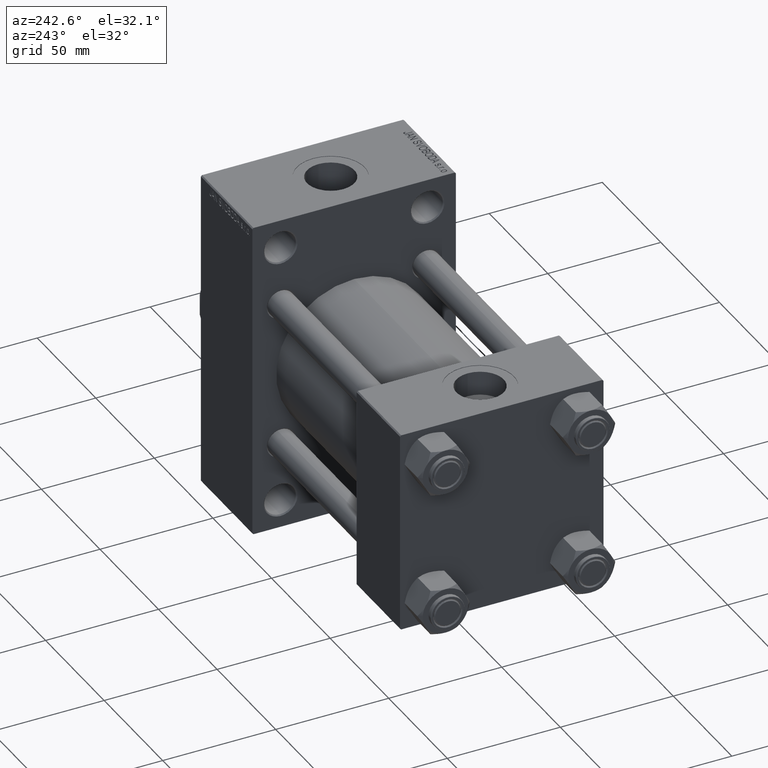
[diagram: clean part render]
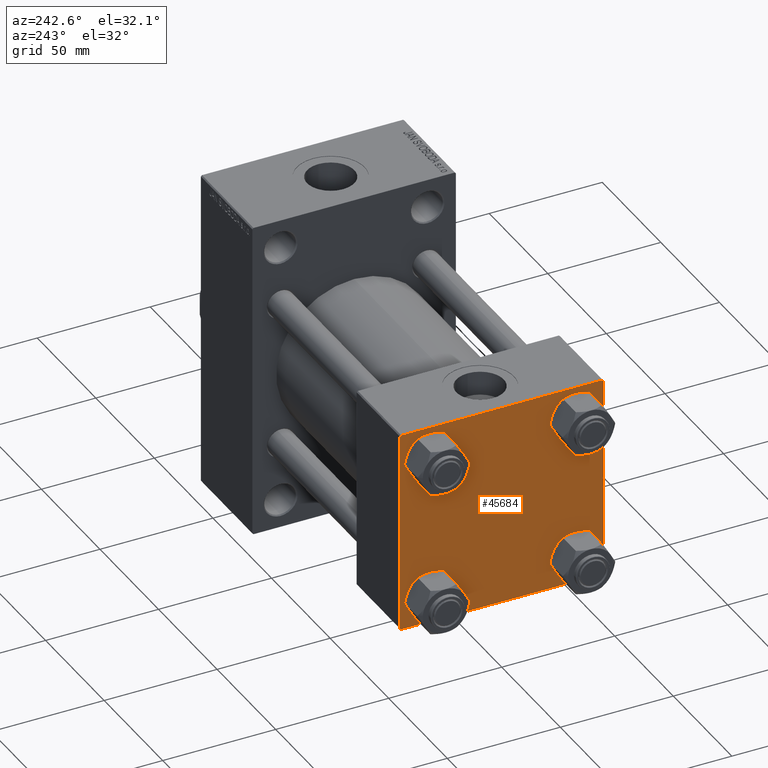
[diagram: same view with one face highlighted and labeled with its STEP entity id]
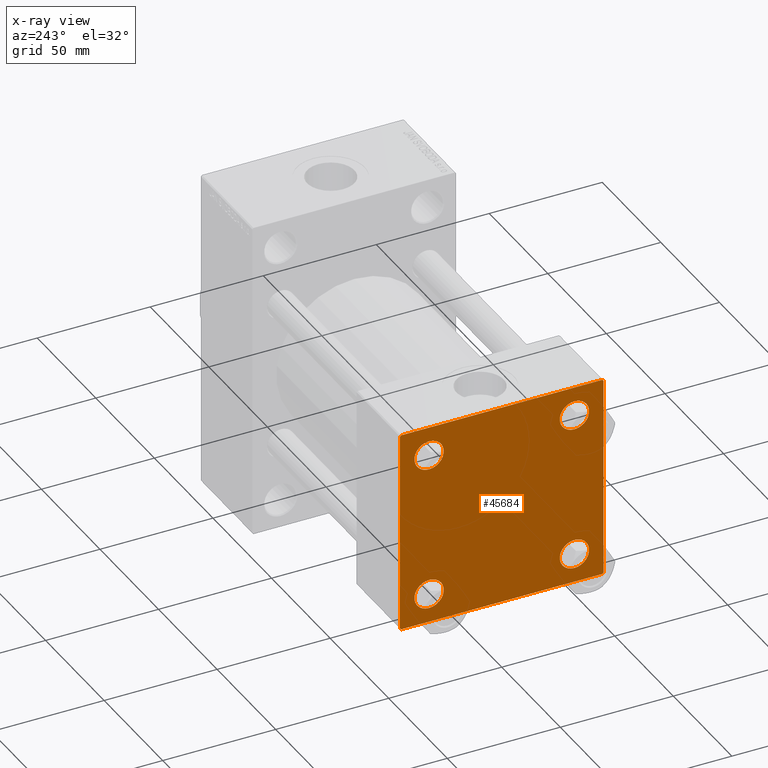
[diagram: x-ray of the same camera — body ghosted, the highlighted face saturated]
A machine part, auxiliary view. The second image highlights one B-rep face of the part: STEP entity #45684.
The next image is the same camera in x-ray: the body ghosted, the highlighted face saturated — about 0% of this face is hidden behind the body in this view.
In plain terms, the highlighted planar face has unit normal (-1, 0, 0).
Its self-contained STEP definition (entity closure, byte-faithful):
#506 = VERTEX_POINT ( 'NONE', #31009 ) ;
#1181 = FACE_BOUND ( 'NONE', #28612, .T. ) ;
#1462 = VERTEX_POINT ( 'NONE', #16847 ) ;
#1650 = FACE_BOUND ( 'NONE', #25374, .T. ) ;
#1666 = VERTEX_POINT ( 'NONE', #4062 ) ;
#1827 = EDGE_CURVE ( 'NONE', #43446, #10693, #13955, .T. ) ;
#2751 = VERTEX_POINT ( 'NONE', #35973 ) ;
#2895 = DIRECTION ( 'NONE',  ( 0.000000000000000000, -0.7071067811865474617, 0.7071067811865474617 ) ) ;
#3062 = AXIS2_PLACEMENT_3D ( 'NONE', #30664, #5489, #11727 ) ;
#3623 = CARTESIAN_POINT ( 'NONE',  ( 0.000000000000000000, 32.14999999999999147, -32.15000000000000568 ) ) ;
#3742 = CARTESIAN_POINT ( 'NONE',  ( 0.000000000000000000, -32.14999999999997726, -25.65000000000003411 ) ) ;
#4062 = CARTESIAN_POINT ( 'NONE',  ( 0.000000000000000000, 44.49999999999998579, -44.99999999999998579 ) ) ;
#4203 = DIRECTION ( 'NONE',  ( 1.000000000000000000, -0.000000000000000000, 0.000000000000000000 ) ) ;
#4767 = VERTEX_POINT ( 'NONE', #25448 ) ;
#5489 = DIRECTION ( 'NONE',  ( -1.000000000000000000, 0.000000000000000000, -0.000000000000000000 ) ) ;
#5672 = VECTOR ( 'NONE', #8697, 1000.000000000000114 ) ;
#6270 = EDGE_CURVE ( 'NONE', #506, #31781, #20991, .T. ) ;
#6406 = ORIENTED_EDGE ( 'NONE', *, *, #1827, .T. ) ;
#6409 = CARTESIAN_POINT ( 'NONE',  ( 0.000000000000000000, -32.14999999999997726, -38.64999999999999147 ) ) ;
#7197 = CARTESIAN_POINT ( 'NONE',  ( 0.000000000000000000, -44.74999999999998579, -44.74999999999998579 ) ) ;
#7246 = VECTOR ( 'NONE', #9499, 1000.000000000000114 ) ;
#7603 = ORIENTED_EDGE ( 'NONE', *, *, #23111, .F. ) ;
#7798 = DIRECTION ( 'NONE',  ( 0.000000000000000000, 0.000000000000000000, 1.000000000000000000 ) ) ;
#7823 = CARTESIAN_POINT ( 'NONE',  ( 0.000000000000000000, -32.14999999999997726, 38.65000000000003411 ) ) ;
#8084 = ORIENTED_EDGE ( 'NONE', *, *, #15948, .T. ) ;
#8697 = DIRECTION ( 'NONE',  ( -0.000000000000000000, -0.7071067811865474617, -0.7071067811865474617 ) ) ;
#8858 = DIRECTION ( 'NONE',  ( 0.000000000000000000, 0.000000000000000000, 1.000000000000000000 ) ) ;
#9090 = AXIS2_PLACEMENT_3D ( 'NONE', #14680, #29302, #30708 ) ;
#9499 = DIRECTION ( 'NONE',  ( 0.000000000000000000, 0.7071067811865474617, -0.7071067811865474617 ) ) ;
#9579 = ORIENTED_EDGE ( 'NONE', *, *, #10551, .T. ) ;
#9670 = DIRECTION ( 'NONE',  ( 0.000000000000000000, -1.000000000000000000, -1.541976423090495633E-16 ) ) ;
#10141 = LINE ( 'NONE', #42523, #15984 ) ;
#10271 = CARTESIAN_POINT ( 'NONE',  ( 0.000000000000000000, -32.14999999999997726, -32.15000000000001279 ) ) ;
#10551 = EDGE_CURVE ( 'NONE', #11972, #41438, #27915, .T. ) ;
#10693 = VERTEX_POINT ( 'NONE', #19200 ) ;
#10891 = AXIS2_PLACEMENT_3D ( 'NONE', #12948, #35252, #8858 ) ;
#11727 = DIRECTION ( 'NONE',  ( -0.000000000000000000, 0.000000000000000000, 1.000000000000000000 ) ) ;
#11972 = VERTEX_POINT ( 'NONE', #20540 ) ;
#12948 = CARTESIAN_POINT ( 'NONE',  ( 0.000000000000000000, 32.14999999999999147, 32.15000000000000568 ) ) ;
#12962 = DIRECTION ( 'NONE',  ( 1.000000000000000000, -0.000000000000000000, 0.000000000000000000 ) ) ;
#13638 = EDGE_CURVE ( 'NONE', #22898, #18156, #35689, .T. ) ;
#13683 = DIRECTION ( 'NONE',  ( 0.000000000000000000, 0.000000000000000000, -1.000000000000000000 ) ) ;
#13763 = ORIENTED_EDGE ( 'NONE', *, *, #16003, .F. ) ;
#13955 = CIRCLE ( 'NONE', #10891, 6.499999999999977796 ) ;
#14284 = VECTOR ( 'NONE', #39844, 1000.000000000000000 ) ;
#14596 = CIRCLE ( 'NONE', #46739, 6.499999999999977796 ) ;
#14680 = CARTESIAN_POINT ( 'NONE',  ( 0.000000000000000000, 32.14999999999999147, -32.15000000000000568 ) ) ;
#15948 = EDGE_CURVE ( 'NONE', #39145, #35372, #40303, .T. ) ;
#15984 = VECTOR ( 'NONE', #9670, 1000.000000000000000 ) ;
#16003 = EDGE_CURVE ( 'NONE', #506, #35372, #28339, .T. ) ;
#16059 = PLANE ( 'NONE',  #3062 ) ;
#16090 = CARTESIAN_POINT ( 'NONE',  ( 0.000000000000000000, -32.14999999999997726, -32.15000000000001279 ) ) ;
#16229 = CARTESIAN_POINT ( 'NONE',  ( 0.000000000000000000, 32.14999999999999147, 25.65000000000002700 ) ) ;
#16847 = CARTESIAN_POINT ( 'NONE',  ( 0.000000000000000000, 32.14999999999999147, -25.65000000000002700 ) ) ;
#16937 = CARTESIAN_POINT ( 'NONE',  ( 0.000000000000000000, 32.14999999999999147, 32.15000000000000568 ) ) ;
#17878 = EDGE_CURVE ( 'NONE', #18156, #22898, #40397, .T. ) ;
#18156 = VERTEX_POINT ( 'NONE', #6409 ) ;
#19200 = CARTESIAN_POINT ( 'NONE',  ( 0.000000000000000000, 32.14999999999999147, 38.64999999999999147 ) ) ;
#19442 = AXIS2_PLACEMENT_3D ( 'NONE', #44959, #4203, #7798 ) ;
#20419 = CARTESIAN_POINT ( 'NONE',  ( 0.000000000000000000, -44.49999999999995737, -45.00000000000000000 ) ) ;
#20540 = CARTESIAN_POINT ( 'NONE',  ( 0.000000000000000000, -32.14999999999997726, 25.64999999999999147 ) ) ;
#20991 = LINE ( 'NONE', #32466, #31711 ) ;
#21896 = AXIS2_PLACEMENT_3D ( 'NONE', #10271, #39549, #33021 ) ;
#22211 = ORIENTED_EDGE ( 'NONE', *, *, #38837, .T. ) ;
#22327 = CARTESIAN_POINT ( 'NONE',  ( 0.000000000000000000, -32.14999999999997726, 32.15000000000001279 ) ) ;
#22354 = EDGE_CURVE ( 'NONE', #1462, #2751, #14596, .T. ) ;
#22608 = ORIENTED_EDGE ( 'NONE', *, *, #6270, .T. ) ;
#22768 = AXIS2_PLACEMENT_3D ( 'NONE', #16090, #12962, #27589 ) ;
#22898 = VERTEX_POINT ( 'NONE', #3742 ) ;
#23111 = EDGE_CURVE ( 'NONE', #4767, #31781, #39006, .T. ) ;
#23218 = EDGE_LOOP ( 'NONE', ( #44685, #22211 ) ) ;
#24372 = DIRECTION ( 'NONE',  ( 0.000000000000000000, -1.000000000000000000, -1.541976423090495387E-16 ) ) ;
#25157 = EDGE_CURVE ( 'NONE', #4767, #46190, #27973, .T. ) ;
#25249 = DIRECTION ( 'NONE',  ( 0.000000000000000000, 0.000000000000000000, 1.000000000000000000 ) ) ;
#25358 = ORIENTED_EDGE ( 'NONE', *, *, #25157, .T. ) ;
#25374 = EDGE_LOOP ( 'NONE', ( #31072, #28910 ) ) ;
#25448 = CARTESIAN_POINT ( 'NONE',  ( 0.000000000000000000, 44.49999999999998579, 45.00000000000001421 ) ) ;
#25576 = VECTOR ( 'NONE', #24372, 1000.000000000000000 ) ;
#26772 = DIRECTION ( 'NONE',  ( 1.000000000000000000, -0.000000000000000000, 0.000000000000000000 ) ) ;
#26844 = FACE_OUTER_BOUND ( 'NONE', #28522, .T. ) ;
#26931 = CARTESIAN_POINT ( 'NONE',  ( 0.000000000000000000, 44.74999999999998579, -44.74999999999998579 ) ) ;
#27120 = EDGE_CURVE ( 'NONE', #41438, #11972, #28661, .T. ) ;
#27555 = EDGE_CURVE ( 'NONE', #46240, #1666, #44202, .T. ) ;
#27589 = DIRECTION ( 'NONE',  ( 0.000000000000000000, 0.000000000000000000, 1.000000000000000000 ) ) ;
#27915 = CIRCLE ( 'NONE', #32489, 6.500000000000019540 ) ;
#27973 = LINE ( 'NONE', #31559, #7246 ) ;
#28339 = LINE ( 'NONE', #42960, #14284 ) ;
#28522 = EDGE_LOOP ( 'NONE', ( #47193, #32246, #32374, #8084, #13763, #22608, #7603, #25358 ) ) ;
#28612 = EDGE_LOOP ( 'NONE', ( #42659, #6406 ) ) ;
#28661 = CIRCLE ( 'NONE', #19442, 6.500000000000019540 ) ;
#28910 = ORIENTED_EDGE ( 'NONE', *, *, #17878, .T. ) ;
#29055 = CARTESIAN_POINT ( 'NONE',  ( 0.000000000000000000, -45.00000000000000000, -44.49999999999995737 ) ) ;
#29302 = DIRECTION ( 'NONE',  ( 1.000000000000000000, -0.000000000000000000, 0.000000000000000000 ) ) ;
#29631 = ORIENTED_EDGE ( 'NONE', *, *, #27120, .T. ) ;
#29759 = CIRCLE ( 'NONE', #9090, 6.499999999999977796 ) ;
#29977 = DIRECTION ( 'NONE',  ( 1.000000000000000000, -0.000000000000000000, 0.000000000000000000 ) ) ;
#30664 = CARTESIAN_POINT ( 'NONE',  ( 0.000000000000000000, 0.000000000000000000, 0.000000000000000000 ) ) ;
#30708 = DIRECTION ( 'NONE',  ( 0.000000000000000000, 0.000000000000000000, 1.000000000000000000 ) ) ;
#30903 = FACE_BOUND ( 'NONE', #23218, .T. ) ;
#31009 = CARTESIAN_POINT ( 'NONE',  ( 0.000000000000000000, -45.00000000000000711, 44.49999999999997158 ) ) ;
#31072 = ORIENTED_EDGE ( 'NONE', *, *, #13638, .T. ) ;
#31559 = CARTESIAN_POINT ( 'NONE',  ( 0.000000000000000000, 44.74999999999999289, 44.74999999999999289 ) ) ;
#31711 = VECTOR ( 'NONE', #43037, 1000.000000000000114 ) ;
#31781 = VERTEX_POINT ( 'NONE', #42683 ) ;
#32246 = ORIENTED_EDGE ( 'NONE', *, *, #27555, .T. ) ;
#32374 = ORIENTED_EDGE ( 'NONE', *, *, #37607, .T. ) ;
#32466 = CARTESIAN_POINT ( 'NONE',  ( -0.000000000000000000, -44.75000000000029843, 44.74999999999967315 ) ) ;
#32489 = AXIS2_PLACEMENT_3D ( 'NONE', #22327, #29977, #34059 ) ;
#32582 = EDGE_CURVE ( 'NONE', #46190, #46240, #47213, .T. ) ;
#32652 = VECTOR ( 'NONE', #13683, 1000.000000000000000 ) ;
#32976 = CARTESIAN_POINT ( 'NONE',  ( 0.000000000000000000, 44.99999999999998579, 44.50000000000001421 ) ) ;
#33021 = DIRECTION ( 'NONE',  ( 0.000000000000000000, 0.000000000000000000, 1.000000000000000000 ) ) ;
#33425 = VECTOR ( 'NONE', #2895, 1000.000000000000114 ) ;
#34059 = DIRECTION ( 'NONE',  ( 0.000000000000000000, 0.000000000000000000, 1.000000000000000000 ) ) ;
#35162 = CARTESIAN_POINT ( 'NONE',  ( 0.000000000000000000, 44.99999999999998579, 45.00000000000001421 ) ) ;
#35252 = DIRECTION ( 'NONE',  ( 1.000000000000000000, -0.000000000000000000, 0.000000000000000000 ) ) ;
#35372 = VERTEX_POINT ( 'NONE', #29055 ) ;
#35689 = CIRCLE ( 'NONE', #21896, 6.499999999999977796 ) ;
#35973 = CARTESIAN_POINT ( 'NONE',  ( 0.000000000000000000, 32.14999999999999147, -38.64999999999998437 ) ) ;
#36588 = EDGE_LOOP ( 'NONE', ( #29631, #9579 ) ) ;
#37607 = EDGE_CURVE ( 'NONE', #1666, #39145, #10141, .T. ) ;
#38050 = DIRECTION ( 'NONE',  ( 0.000000000000000000, 0.000000000000000000, 1.000000000000000000 ) ) ;
#38837 = EDGE_CURVE ( 'NONE', #2751, #1462, #29759, .T. ) ;
#39006 = LINE ( 'NONE', #35162, #25576 ) ;
#39145 = VERTEX_POINT ( 'NONE', #20419 ) ;
#39549 = DIRECTION ( 'NONE',  ( 1.000000000000000000, -0.000000000000000000, 0.000000000000000000 ) ) ;
#39580 = CARTESIAN_POINT ( 'NONE',  ( 0.000000000000000000, 44.99999999999998579, 45.00000000000001421 ) ) ;
#39844 = DIRECTION ( 'NONE',  ( 0.000000000000000000, 7.709882115452476934E-17, -1.000000000000000000 ) ) ;
#40303 = LINE ( 'NONE', #7197, #33425 ) ;
#40397 = CIRCLE ( 'NONE', #22768, 6.499999999999977796 ) ;
#40559 = DIRECTION ( 'NONE',  ( 1.000000000000000000, -0.000000000000000000, 0.000000000000000000 ) ) ;
#40846 = EDGE_CURVE ( 'NONE', #10693, #43446, #42761, .T. ) ;
#41233 = AXIS2_PLACEMENT_3D ( 'NONE', #16937, #26772, #38050 ) ;
#41438 = VERTEX_POINT ( 'NONE', #7823 ) ;
#41713 = FACE_BOUND ( 'NONE', #36588, .T. ) ;
#42523 = CARTESIAN_POINT ( 'NONE',  ( 0.000000000000000000, 44.99999999999998579, -44.99999999999998579 ) ) ;
#42659 = ORIENTED_EDGE ( 'NONE', *, *, #40846, .T. ) ;
#42683 = CARTESIAN_POINT ( 'NONE',  ( 0.000000000000000000, -44.49999999999995737, 45.00000000000000000 ) ) ;
#42761 = CIRCLE ( 'NONE', #41233, 6.499999999999977796 ) ;
#42960 = CARTESIAN_POINT ( 'NONE',  ( 0.000000000000000000, -45.00000000000000711, 45.00000000000000000 ) ) ;
#43037 = DIRECTION ( 'NONE',  ( -0.000000000000000000, 0.7071067811865425767, 0.7071067811865524577 ) ) ;
#43446 = VERTEX_POINT ( 'NONE', #16229 ) ;
#44202 = LINE ( 'NONE', #26931, #5672 ) ;
#44685 = ORIENTED_EDGE ( 'NONE', *, *, #22354, .T. ) ;
#44959 = CARTESIAN_POINT ( 'NONE',  ( 0.000000000000000000, -32.14999999999997726, 32.15000000000001279 ) ) ;
#45684 = ADVANCED_FACE ( 'NONE', ( #41713, #1650, #30903, #1181, #26844 ), #16059, .T. ) ;
#46190 = VERTEX_POINT ( 'NONE', #32976 ) ;
#46240 = VERTEX_POINT ( 'NONE', #47134 ) ;
#46739 = AXIS2_PLACEMENT_3D ( 'NONE', #3623, #40559, #25249 ) ;
#47134 = CARTESIAN_POINT ( 'NONE',  ( 0.000000000000000000, 44.99999999999998579, -44.49999999999995737 ) ) ;
#47193 = ORIENTED_EDGE ( 'NONE', *, *, #32582, .T. ) ;
#47213 = LINE ( 'NONE', #39580, #32652 ) ;